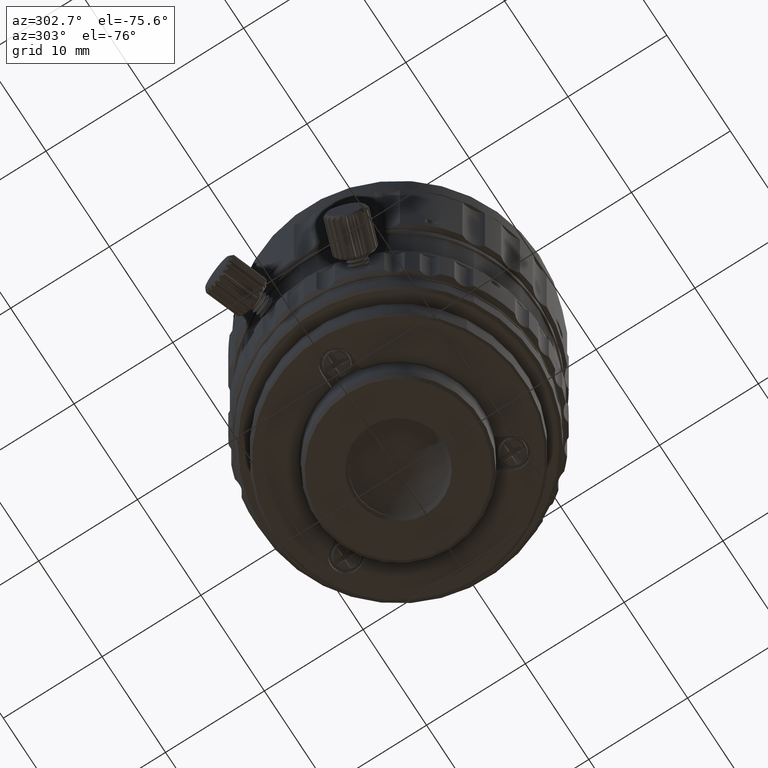
[diagram: clean part render]
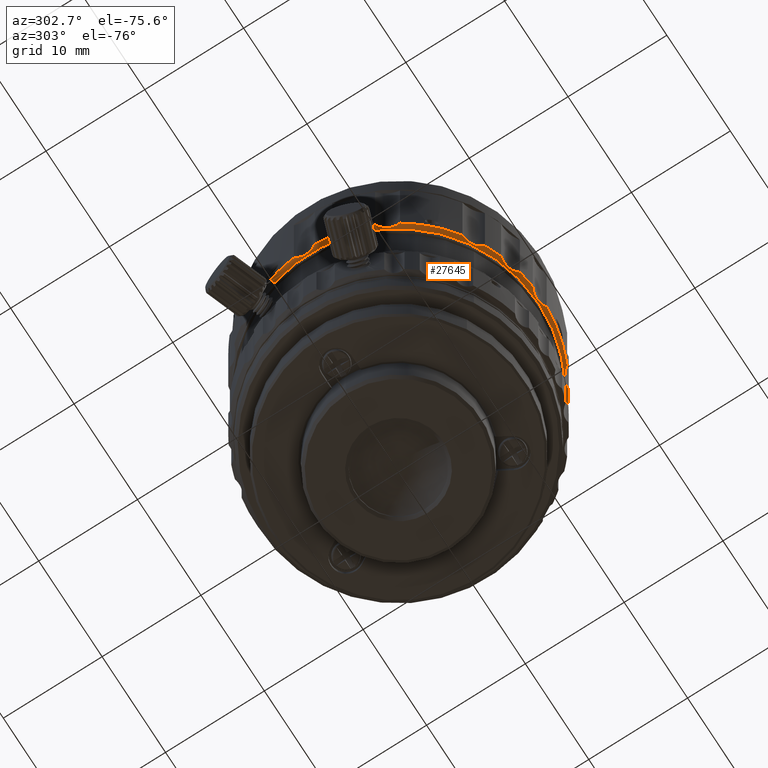
[diagram: same view with one face highlighted and labeled with its STEP entity id]
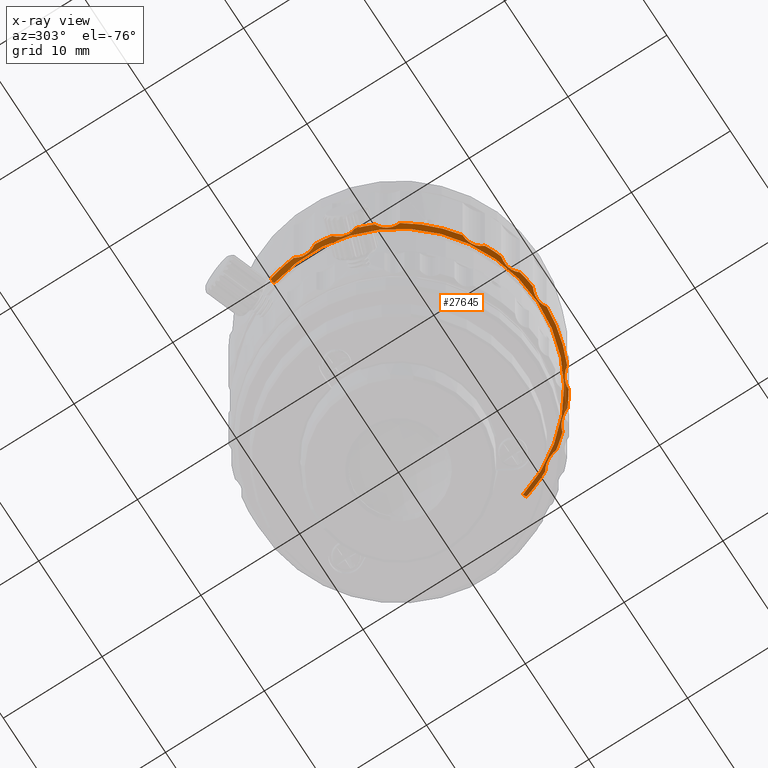
[diagram: x-ray of the same camera — body ghosted, the highlighted face saturated]
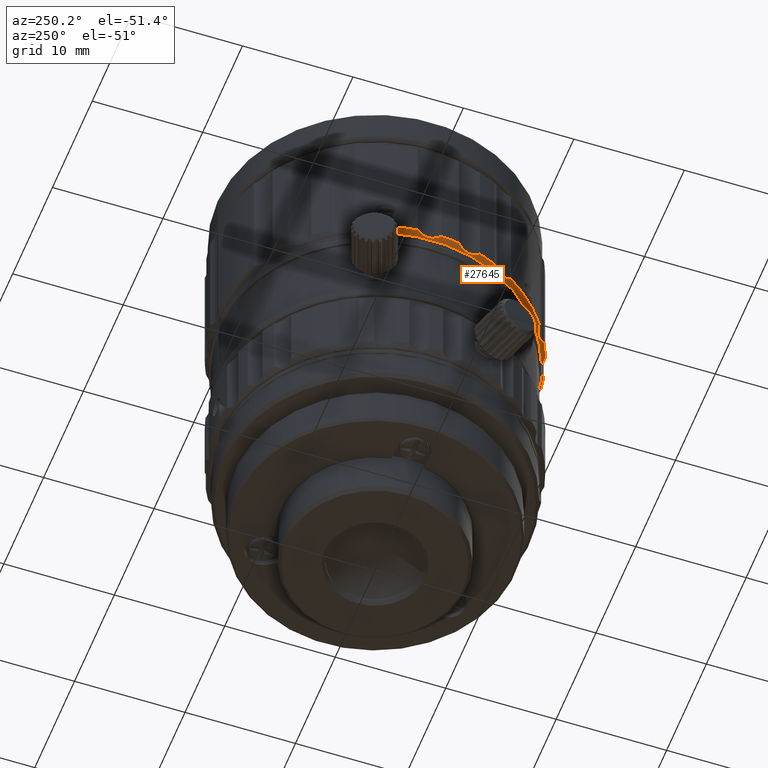
[diagram: same view with one face highlighted and labeled with its STEP entity id]
A machine part, auxiliary view. The second image highlights one B-rep face of the part: STEP entity #27645.
The next image is the same camera in x-ray: the body ghosted, the highlighted face saturated — about 28% of this face is hidden behind the body in this view.
A second angle (auxiliary view) of the same face is appended — the face is thin or edge-on in the first view.
In plain terms, the highlighted conical surface has half-angle 45 deg.
Its self-contained STEP definition (entity closure, byte-faithful):
#700 = CARTESIAN_POINT ( 'NONE',  ( -14.21644271444080054, 0.6001084886705840837, 14.92874179533260026 ) ) ;
#804 = CARTESIAN_POINT ( 'NONE',  ( 13.93829459076052402, -3.996741659247625034, 15.19999998125000040 ) ) ;
#1178 = CARTESIAN_POINT ( 'NONE',  ( -14.24423614477080058, -2.516241994275719929, 15.16466312319590060 ) ) ;
#1294 = CARTESIAN_POINT ( 'NONE',  ( -3.746276467587790204, -13.70267296574570182, 14.90519358754220036 ) ) ;
#1419 = VERTEX_POINT ( 'NONE', #10674 ) ;
#1709 = ORIENTED_EDGE ( 'NONE', *, *, #18002, .F. ) ;
#2018 = DIRECTION ( 'NONE',  ( -0.9612616959425918095, 0.2756373558020978609, 0.000000000000000000 ) ) ;
#2423 = CARTESIAN_POINT ( 'NONE',  ( -5.008754729104790471, -13.60743826234570086, 15.19999998125000040 ) ) ;
#2433 = CARTESIAN_POINT ( 'NONE',  ( -4.084192400950789725, -13.60576681667569865, 14.90518205046690170 ) ) ;
#2513 = VERTEX_POINT ( 'NONE', #18651 ) ;
#2928 = CARTESIAN_POINT ( 'NONE',  ( -1.316221373034790032, -14.44013716337570052, 15.19999998125000040 ) ) ;
#3165 = CARTESIAN_POINT ( 'NONE',  ( 10.44768126967919919, -9.801965028739719088, 15.02558370914869812 ) ) ;
#3214 = CARTESIAN_POINT ( 'NONE',  ( 0.2796835366445090121, -14.26616599309570077, 14.96854781948299973 ) ) ;
#3490 = B_SPLINE_CURVE_WITH_KNOTS ( 'NONE', 3,
 ( #9312, #48570, #4720, #22210, #4449, #700, #39144, #52597, #9036, #22476, #4179, #48299, #52318, #18183, #26777 ),
 .UNSPECIFIED., .F., .F.,
 ( 4, 1, 1, 1, 1, 1, 1, 1, 1, 1, 1, 1, 4 ),
 ( 0.000000000000000000, 0.08333333333333001192, 0.1666666666667000196, 0.2500000000000000000, 0.3333333333333000081, 0.4166666666666999919, 0.5000000000000000000, 0.5833333333333000637, 0.6666666666667000474, 0.7500000000000000000, 0.8333333333333000637, 0.9166666666667000474, 1.000000000000000000 ),
 .UNSPECIFIED. ) ;
#3542 = B_SPLINE_CURVE_WITH_KNOTS ( 'NONE', 3,
 ( #34566, #7922, #38309, #52044, #12511, #21941, #12781, #55777, #47741, #8492, #43461, #17651, #47462, #51483, #8198 ),
 .UNSPECIFIED., .F., .F.,
 ( 4, 1, 1, 1, 1, 1, 1, 1, 1, 1, 1, 1, 4 ),
 ( 0.000000000000000000, 0.08333333333333001192, 0.1666666666667000196, 0.2500000000000000000, 0.3333333333333000081, 0.4166666666666999919, 0.5000000000000000000, 0.5833333333333000637, 0.6666666666667000474, 0.7500000000000000000, 0.8333333333333000637, 0.9166666666667000474, 1.000000000000000000 ),
 .UNSPECIFIED. ) ;
#3723 = CARTESIAN_POINT ( 'NONE',  ( 9.431440214684208456, -10.78327974162569980, 15.02553577717860023 ) ) ;
#4179 = CARTESIAN_POINT ( 'NONE',  ( -14.26616599309079980, -0.2796835366456160155, 14.96854781947820001 ) ) ;
#4199 = CARTESIAN_POINT ( 'NONE',  ( 12.94342189120919784, -6.535887831521720592, 15.19999998124989915 ) ) ;
#4277 = ORIENTED_EDGE ( 'NONE', *, *, #27507, .F. ) ;
#4449 = CARTESIAN_POINT ( 'NONE',  ( -14.24769970420079979, 0.7773438030754840078, 14.96852953515519857 ) ) ;
#4704 = DIRECTION ( 'NONE',  ( 1.000000000000000000, 0.000000000000000000, 0.000000000000000000 ) ) ;
#4720 = CARTESIAN_POINT ( 'NONE',  ( -14.35639452102079971, 1.135466856266279967, 15.10087547233170113 ) ) ;
#4795 = CARTESIAN_POINT ( 'NONE',  ( -12.21502039630079928, -7.375296044304719523, 14.96854781947950030 ) ) ;
#5009 = CARTESIAN_POINT ( 'NONE',  ( 0.000000000000000000, 0.000000000000000000, 15.19999998125000040 ) ) ;
#5753 = CARTESIAN_POINT ( 'NONE',  ( -13.77598121088080063, -3.434962321789719830, 14.89740607222250013 ) ) ;
#6026 = VERTEX_POINT ( 'NONE', #32463 ) ;
#6236 = ORIENTED_EDGE ( 'NONE', *, *, #46639, .F. ) ;
#6386 = CARTESIAN_POINT ( 'NONE',  ( 12.62862039208919995, -6.763912279892720925, 15.02558370915519781 ) ) ;
#6722 = CARTESIAN_POINT ( 'NONE',  ( -3.422201908372789703, -13.85244560074570153, 14.96854781948139923 ) ) ;
#7052 = ORIENTED_EDGE ( 'NONE', *, *, #25080, .F. ) ;
#7138 = EDGE_CURVE ( 'NONE', #9712, #56320, #21315, .T. ) ;
#7190 = VERTEX_POINT ( 'NONE', #53690 ) ;
#7196 = EDGE_CURVE ( 'NONE', #29335, #31066, #25976, .T. ) ;
#7498 = CARTESIAN_POINT ( 'NONE',  ( -6.535887831521789870, -12.94342189120570019, 15.19999998124989915 ) ) ;
#7511 = CARTESIAN_POINT ( 'NONE',  ( 0.1039023093020089994, -14.22877810675570132, 14.92879609105460048 ) ) ;
#7922 = CARTESIAN_POINT ( 'NONE',  ( 6.117182724669210536, -13.10762421778570008, 15.16466312319649923 ) ) ;
#8193 = CARTESIAN_POINT ( 'NONE',  ( -6.890869948791789490, -12.49470393294569881, 14.96854781947909885 ) ) ;
#8198 = CARTESIAN_POINT ( 'NONE',  ( 7.941388253924210439, -12.13195584398570048, 15.19999998125040008 ) ) ;
#8306 = CARTESIAN_POINT ( 'NONE',  ( 9.862755237146211940, -10.21286852978570003, 14.89740607222080016 ) ) ;
#8485 = CARTESIAN_POINT ( 'NONE',  ( 0.000000000000000000, 0.000000000000000000, 15.19999998125000040 ) ) ;
#8492 = CARTESIAN_POINT ( 'NONE',  ( 7.204371092744209726, -12.27053215061569880, 14.92879609105509964 ) ) ;
#8547 = CARTESIAN_POINT ( 'NONE',  ( -12.13364787171079939, -7.874277762081719700, 15.16466047324919941 ) ) ;
#9036 = CARTESIAN_POINT ( 'NONE',  ( -14.20537340483080158, 0.07211246011697400315, 14.90519358753909884 ) ) ;
#9220 = CARTESIAN_POINT ( 'NONE',  ( -13.73301869126079922, -4.335840997771719607, 15.10087495406460079 ) ) ;
#9312 = CARTESIAN_POINT ( 'NONE',  ( -14.44013716338080044, 1.316221373034280218, 15.19999998125000040 ) ) ;
#9316 = DIRECTION ( 'NONE',  ( 1.000000000000000000, 0.000000000000000000, 0.000000000000000000 ) ) ;
#9471 = CARTESIAN_POINT ( 'NONE',  ( 13.74604225191793283, -3.941614188183171663, 14.99999998124999934 ) ) ;
#9712 = VERTEX_POINT ( 'NONE', #41316 ) ;
#9888 = CARTESIAN_POINT ( 'NONE',  ( -3.582316838598790021, -13.77083614632569919, 14.92879609105290051 ) ) ;
#9918 = ORIENTED_EDGE ( 'NONE', *, *, #54650, .F. ) ;
#9929 = ORIENTED_EDGE ( 'NONE', *, *, #20125, .F. ) ;
#10055 = CARTESIAN_POINT ( 'NONE',  ( -13.74000112187079914, -3.606965892342720359, 14.90519358753620160 ) ) ;
#10529 = CARTESIAN_POINT ( 'NONE',  ( 0.000000000000000000, 0.000000000000000000, 15.19999998125000040 ) ) ;
#10674 = CARTESIAN_POINT ( 'NONE',  ( -14.44013716338080044, 1.316221373034280218, 15.19999998125000040 ) ) ;
#10698 = CARTESIAN_POINT ( 'NONE',  ( 12.08509477746920169, -7.466458494992719963, 14.90518205046770106 ) ) ;
#10770 = EDGE_CURVE ( 'NONE', #56473, #31293, #25491, .T. ) ;
#10853 = EDGE_CURVE ( 'NONE', #53858, #56473, #39721, .T. ) ;
#11393 = CIRCLE ( 'NONE', #56236, 14.50000000000000000 ) ;
#11809 = CARTESIAN_POINT ( 'NONE',  ( -1.135466856259790047, -14.35639452102569891, 15.10087547233560024 ) ) ;
#12097 = CARTESIAN_POINT ( 'NONE',  ( 0.000000000000000000, 0.000000000000000000, 15.19999998125000040 ) ) ;
#12269 = ORIENTED_EDGE ( 'NONE', *, *, #23653, .F. ) ;
#12333 = CARTESIAN_POINT ( 'NONE',  ( 9.301247561492209215, -11.07774936173569991, 15.16466312319569987 ) ) ;
#12511 = CARTESIAN_POINT ( 'NONE',  ( 6.450650371167210295, -12.72754179087569959, 14.96852953515970164 ) ) ;
#12775 = CARTESIAN_POINT ( 'NONE',  ( -8.292944193531790020, -11.85144774804569856, 15.16466312319619902 ) ) ;
#12781 = CARTESIAN_POINT ( 'NONE',  ( 6.732769836931209895, -12.50869012169570027, 14.90518205046920031 ) ) ;
#13129 = CARTESIAN_POINT ( 'NONE',  ( -12.50869012169080108, -6.732769836930719620, 14.90518205046460132 ) ) ;
#13301 = B_SPLINE_CURVE_WITH_KNOTS ( 'NONE', 3,
 ( #19055, #15323, #54310, #40836, #24201, #54861, #2433, #15038, #1294, #9888, #6722, #32234, #23351, #36830, #19636 ),
 .UNSPECIFIED., .F., .F.,
 ( 4, 1, 1, 1, 1, 1, 1, 1, 1, 1, 1, 1, 4 ),
 ( 0.000000000000000000, 0.08333333333333001192, 0.1666666666667000196, 0.2500000000000000000, 0.3333333333333000081, 0.4166666666666999919, 0.5000000000000000000, 0.5833333333333000637, 0.6666666666667000474, 0.7500000000000000000, 0.8333333333333000637, 0.9166666666667000474, 1.000000000000000000 ),
 .UNSPECIFIED. ) ;
#13317 = CARTESIAN_POINT ( 'NONE',  ( 0.000000000000000000, 0.000000000000000000, 15.19999998125000040 ) ) ;
#13397 = CARTESIAN_POINT ( 'NONE',  ( -12.27053215061079960, -7.204371092744720428, 14.92879609105090033 ) ) ;
#13510 = EDGE_CURVE ( 'NONE', #31293, #41237, #13301, .T. ) ;
#13592 = DIRECTION ( 'NONE',  ( 0.000000000000000000, 0.000000000000000000, 1.000000000000000000 ) ) ;
#14011 = VERTEX_POINT ( 'NONE', #45527 ) ;
#14039 = LINE ( 'NONE', #9471, #40132 ) ;
#14119 = VERTEX_POINT ( 'NONE', #25180 ) ;
#14339 = B_SPLINE_CURVE_WITH_KNOTS ( 'NONE', 3,
 ( #25493, #12333, #29804, #3723, #37852, #55317, #56173, #8306, #21203, #33530, #29512, #3165, #16916, #34387, #51868 ),
 .UNSPECIFIED., .F., .F.,
 ( 4, 1, 1, 1, 1, 1, 1, 1, 1, 1, 1, 1, 4 ),
 ( 0.000000000000000000, 0.08333333333333001192, 0.1666666666667000196, 0.2500000000000000000, 0.3333333333333000081, 0.4166666666666999919, 0.5000000000000000000, 0.5833333333333000637, 0.6666666666667000474, 0.7500000000000000000, 0.8333333333333000637, 0.9166666666667000474, 1.000000000000000000 ),
 .UNSPECIFIED. ) ;
#14489 = EDGE_CURVE ( 'NONE', #7190, #1419, #20191, .T. ) ;
#14705 = CARTESIAN_POINT ( 'NONE',  ( 12.88614851427920094, -6.570908416431720411, 15.16466047324880151 ) ) ;
#15038 = CARTESIAN_POINT ( 'NONE',  ( -3.913225973729789864, -13.64783085157569964, 14.89740607222870139 ) ) ;
#15244 = CARTESIAN_POINT ( 'NONE',  ( -0.2475674834052909723, -14.19560970215569995, 14.89740607223050084 ) ) ;
#15323 = CARTESIAN_POINT ( 'NONE',  ( -4.942988583273789871, -13.59399135601569952, 15.16466312319619902 ) ) ;
#15377 = LINE ( 'NONE', #37753, #49578 ) ;
#15542 = DIRECTION ( 'NONE',  ( 1.000000000000000000, 0.000000000000000000, 0.000000000000000000 ) ) ;
#15686 = DIRECTION ( 'NONE',  ( 0.000000000000000000, 0.000000000000000000, 1.000000000000000000 ) ) ;
#15970 = CIRCLE ( 'NONE', #19155, 14.50000000000000000 ) ;
#16391 = CARTESIAN_POINT ( 'NONE',  ( 0.7525006425657090325, -14.44518617851570141, 15.16466047324889921 ) ) ;
#16548 = AXIS2_PLACEMENT_3D ( 'NONE', #45276, #50739, #2018 ) ;
#16661 = AXIS2_PLACEMENT_3D ( 'NONE', #12097, #29565, #47054 ) ;
#16916 = CARTESIAN_POINT ( 'NONE',  ( 10.62145779646920118, -9.725222558394721162, 15.10087495406209968 ) ) ;
#17146 = CARTESIAN_POINT ( 'NONE',  ( -12.85688474484079968, -6.319153516671719650, 15.02553577718230038 ) ) ;
#17424 = CARTESIAN_POINT ( 'NONE',  ( -12.41754236597080130, -6.883405121297720086, 14.89740607222650048 ) ) ;
#17645 = CARTESIAN_POINT ( 'NONE',  ( -7.974812044228788643, -11.90098984827569950, 15.02553577718270184 ) ) ;
#17651 = CARTESIAN_POINT ( 'NONE',  ( 7.554749934355210250, -12.17203005940569938, 15.02558370915659935 ) ) ;
#18002 = EDGE_CURVE ( 'NONE', #31066, #35762, #37399, .T. ) ;
#18183 = CARTESIAN_POINT ( 'NONE',  ( -14.44518617851080045, -0.7525006425673159693, 15.16466047324889921 ) ) ;
#18292 = CARTESIAN_POINT ( 'NONE',  ( 0.000000000000000000, 0.000000000000000000, 14.99999998124999934 ) ) ;
#18468 = DIRECTION ( 'NONE',  ( 0.000000000000000000, 0.000000000000000000, 1.000000000000000000 ) ) ;
#18531 = ORIENTED_EDGE ( 'NONE', *, *, #7138, .F. ) ;
#18651 = CARTESIAN_POINT ( 'NONE',  ( -13.55378991279054901, 3.886486716809581576, 14.79999998125000005 ) ) ;
#19013 = CARTESIAN_POINT ( 'NONE',  ( 11.84741493109920007, -8.359949727741721404, 15.19999998125000040 ) ) ;
#19055 = CARTESIAN_POINT ( 'NONE',  ( -5.008754729104790471, -13.60743826234570086, 15.19999998125000040 ) ) ;
#19155 = AXIS2_PLACEMENT_3D ( 'NONE', #28275, #28567, #45759 ) ;
#19636 = CARTESIAN_POINT ( 'NONE',  ( -2.963178759953789765, -14.19399773272570009, 15.19999998125000040 ) ) ;
#20124 = CARTESIAN_POINT ( 'NONE',  ( -1.316221373034790032, -14.44013716337570052, 15.19999998125000040 ) ) ;
#20125 = EDGE_CURVE ( 'NONE', #2513, #7190, #15377, .T. ) ;
#20191 = CIRCLE ( 'NONE', #46703, 14.50000000000000000 ) ;
#20417 = CARTESIAN_POINT ( 'NONE',  ( -0.7773438030712910285, -14.24769970420569898, 14.96852953515910123 ) ) ;
#20694 = CARTESIAN_POINT ( 'NONE',  ( 0.6337340143749089494, -14.38727565356570004, 15.10087495407200109 ) ) ;
#21146 = CARTESIAN_POINT ( 'NONE',  ( -12.13195584399080040, -7.941388253921720874, 15.19999998125040008 ) ) ;
#21195 = CARTESIAN_POINT ( 'NONE',  ( -12.13195584399080040, -7.941388253921720874, 15.19999998125040008 ) ) ;
#21203 = CARTESIAN_POINT ( 'NONE',  ( 9.993724654284211084, -10.09570707339569928, 14.90519358753440038 ) ) ;
#21315 = CIRCLE ( 'NONE', #24027, 14.50000000000000000 ) ;
#21446 = CARTESIAN_POINT ( 'NONE',  ( -13.10762421778080089, -6.117182724668720262, 15.16466312319649923 ) ) ;
#21670 = CARTESIAN_POINT ( 'NONE',  ( -7.466458494992790129, -12.08509477746570049, 14.90518205046480027 ) ) ;
#21941 = CARTESIAN_POINT ( 'NONE',  ( 6.588512161008210022, -12.61185478648570246, 14.92874179533739998 ) ) ;
#22048 = FACE_OUTER_BOUND ( 'NONE', #52872, .T. ) ;
#22199 = EDGE_CURVE ( 'NONE', #49622, #14011, #52465, .T. ) ;
#22210 = CARTESIAN_POINT ( 'NONE',  ( -14.29396556090079962, 0.9558948965719840096, 15.02553577718230038 ) ) ;
#22476 = CARTESIAN_POINT ( 'NONE',  ( -14.22877810675080035, -0.1039023093020160077, 14.92879609104969951 ) ) ;
#22942 = CARTESIAN_POINT ( 'NONE',  ( -13.71259135674080021, -4.146974875819720019, 15.02558370915030039 ) ) ;
#23025 = CARTESIAN_POINT ( 'NONE',  ( 11.85144774804919976, -8.292944193529720565, 15.16466312319619902 ) ) ;
#23234 = CARTESIAN_POINT ( 'NONE',  ( 13.55378991273027367, -3.886486717019769888, 14.79999998125000005 ) ) ;
#23351 = CARTESIAN_POINT ( 'NONE',  ( -3.111560894797790411, -14.06106355616570092, 15.10087495407050007 ) ) ;
#23653 = EDGE_CURVE ( 'NONE', #1419, #40421, #3490, .T. ) ;
#23873 = CARTESIAN_POINT ( 'NONE',  ( 12.77661321442919906, -6.644808071090720247, 15.10087495407100100 ) ) ;
#24027 = AXIS2_PLACEMENT_3D ( 'NONE', #13317, #13592, #4704 ) ;
#24130 = CARTESIAN_POINT ( 'NONE',  ( -0.4235953442324910112, -14.19922833192569911, 14.90518205046869937 ) ) ;
#24201 = CARTESIAN_POINT ( 'NONE',  ( -4.438432487642789859, -13.56102972867570067, 14.96852953515760021 ) ) ;
#24936 = ORIENTED_EDGE ( 'NONE', *, *, #34848, .F. ) ;
#25061 = EDGE_CURVE ( 'NONE', #6026, #29335, #33330, .T. ) ;
#25080 = EDGE_CURVE ( 'NONE', #40421, #33010, #15970, .T. ) ;
#25180 = CARTESIAN_POINT ( 'NONE',  ( 0.8114660472206089992, -14.47727608544570010, 15.19999998125000040 ) ) ;
#25373 = ORIENTED_EDGE ( 'NONE', *, *, #27445, .F. ) ;
#25458 = CARTESIAN_POINT ( 'NONE',  ( 6.080187435636210225, -13.16363630413570007, 15.19999998125000040 ) ) ;
#25491 = CIRCLE ( 'NONE', #49290, 14.50000000000000000 ) ;
#25493 = CARTESIAN_POINT ( 'NONE',  ( 9.280009851069211280, -11.14142796790570067, 15.19999998125000040 ) ) ;
#25530 = CARTESIAN_POINT ( 'NONE',  ( 0.000000000000000000, 0.000000000000000000, 15.19999998125000040 ) ) ;
#25976 = B_SPLINE_CURVE_WITH_KNOTS ( 'NONE', 3,
 ( #19013, #23025, #44525, #49683, #45643, #53965, #10698, #27601, #54545, #54267, #36787, #6386, #23873, #14705, #32190 ),
 .UNSPECIFIED., .F., .F.,
 ( 4, 1, 1, 1, 1, 1, 1, 1, 1, 1, 1, 1, 4 ),
 ( 0.000000000000000000, 0.08333333333333001192, 0.1666666666667000196, 0.2500000000000000000, 0.3333333333333000081, 0.4166666666666999919, 0.5000000000000000000, 0.5833333333333000637, 0.6666666666667000474, 0.7500000000000000000, 0.8333333333333000637, 0.9166666666667000474, 1.000000000000000000 ),
 .UNSPECIFIED. ) ;
#26013 = VERTEX_POINT ( 'NONE', #20124 ) ;
#26017 = CARTESIAN_POINT ( 'NONE',  ( -12.72754179087080040, -6.450650371165719932, 14.96852953515529983 ) ) ;
#26512 = CARTESIAN_POINT ( 'NONE',  ( -6.570908416431790577, -12.88614851427569974, 15.16466047324880151 ) ) ;
#26569 = CARTESIAN_POINT ( 'NONE',  ( -13.16363630413079910, -6.080187435637720128, 15.19999998125019935 ) ) ;
#26616 = ORIENTED_EDGE ( 'NONE', *, *, #10853, .F. ) ;
#26777 = CARTESIAN_POINT ( 'NONE',  ( -14.47727608544080091, -0.8114660472223159671, 15.19999998125000040 ) ) ;
#26935 = DIRECTION ( 'NONE',  ( 0.6797146630828566627, -0.1949050432716163961, 0.7071067818211390632 ) ) ;
#26955 = ORIENTED_EDGE ( 'NONE', *, *, #32106, .F. ) ;
#27445 = EDGE_CURVE ( 'NONE', #36725, #2513, #54992, .T. ) ;
#27507 = EDGE_CURVE ( 'NONE', #14011, #6026, #14339, .T. ) ;
#27601 = CARTESIAN_POINT ( 'NONE',  ( 12.16997488256919979, -7.312204580857720515, 14.89740607222940127 ) ) ;
#27645 = ADVANCED_FACE ( 'NONE', ( #22048 ), #53146, .T. ) ;
#27993 = DIRECTION ( 'NONE',  ( 1.000000000000000000, 0.000000000000000000, 0.000000000000000000 ) ) ;
#28134 = CARTESIAN_POINT ( 'NONE',  ( 0.000000000000000000, 0.000000000000000000, 15.19999998125000040 ) ) ;
#28275 = CARTESIAN_POINT ( 'NONE',  ( 0.000000000000000000, 0.000000000000000000, 15.19999998125000040 ) ) ;
#28567 = DIRECTION ( 'NONE',  ( 0.000000000000000000, 0.000000000000000000, 1.000000000000000000 ) ) ;
#28740 = CARTESIAN_POINT ( 'NONE',  ( -2.963178759953789765, -14.19399773272570009, 15.19999998125000040 ) ) ;
#29273 = CARTESIAN_POINT ( 'NONE',  ( -0.9558948965683909949, -14.29396556090570058, 15.02553577718530065 ) ) ;
#29335 = VERTEX_POINT ( 'NONE', #53134 ) ;
#29512 = CARTESIAN_POINT ( 'NONE',  ( 10.28546884059920075, -9.889936589897718733, 14.96854781947399893 ) ) ;
#29565 = DIRECTION ( 'NONE',  ( 0.000000000000000000, 0.000000000000000000, 1.000000000000000000 ) ) ;
#29699 = CARTESIAN_POINT ( 'NONE',  ( -7.627930553435789740, -12.01174629781569969, 14.92874179533330015 ) ) ;
#29804 = CARTESIAN_POINT ( 'NONE',  ( 9.348607605322209579, -10.95440023308569977, 15.10087547232710037 ) ) ;
#30990 = CARTESIAN_POINT ( 'NONE',  ( -13.96341249032080079, -2.936719577054720087, 14.96852953515159967 ) ) ;
#31066 = VERTEX_POINT ( 'NONE', #4199 ) ;
#31275 = CARTESIAN_POINT ( 'NONE',  ( -8.359949727743790859, -11.84741493109569888, 15.19999998125000040 ) ) ;
#31293 = VERTEX_POINT ( 'NONE', #2423 ) ;
#31298 = CARTESIAN_POINT ( 'NONE',  ( -13.16363630413079910, -6.080187435637720128, 15.19999998125019935 ) ) ;
#31474 = DIRECTION ( 'NONE',  ( -1.150809682885772011E-17, 3.299893664540600058E-18, 1.000000000000000000 ) ) ;
#31550 = CARTESIAN_POINT ( 'NONE',  ( -14.05431429970079904, -2.776226949384720033, 15.02553577717920064 ) ) ;
#31652 = ORIENTED_EDGE ( 'NONE', *, *, #49244, .F. ) ;
#31825 = CARTESIAN_POINT ( 'NONE',  ( -13.88734868183079918, -3.099825840325720172, 14.92874179532910084 ) ) ;
#32106 = EDGE_CURVE ( 'NONE', #14119, #34294, #40819, .T. ) ;
#32190 = CARTESIAN_POINT ( 'NONE',  ( 12.94342189120919784, -6.535887831521720592, 15.19999998124989915 ) ) ;
#32234 = CARTESIAN_POINT ( 'NONE',  ( -3.264910087057789845, -13.94893990456569988, 15.02558370915479991 ) ) ;
#32452 = CARTESIAN_POINT ( 'NONE',  ( 0.000000000000000000, 0.000000000000000000, 15.19999998125000040 ) ) ;
#32463 = CARTESIAN_POINT ( 'NONE',  ( 10.81077323781920008, -9.663186948434720591, 15.19999998124980145 ) ) ;
#33010 = VERTEX_POINT ( 'NONE', #39041 ) ;
#33303 = CARTESIAN_POINT ( 'NONE',  ( -1.256176469738790047, -14.41012691819569902, 15.16466312319619902 ) ) ;
#33330 = CIRCLE ( 'NONE', #55315, 14.50000000000000000 ) ;
#33530 = CARTESIAN_POINT ( 'NONE',  ( 10.13473551476920065, -9.987795459789719388, 14.92879609104529948 ) ) ;
#33814 = EDGE_CURVE ( 'NONE', #33010, #9712, #52869, .T. ) ;
#33868 = CARTESIAN_POINT ( 'NONE',  ( 0.8114660472206089992, -14.47727608544570010, 15.19999998125000040 ) ) ;
#34004 = ORIENTED_EDGE ( 'NONE', *, *, #33814, .F. ) ;
#34130 = AXIS2_PLACEMENT_3D ( 'NONE', #28134, #54525, #41927 ) ;
#34294 = VERTEX_POINT ( 'NONE', #25458 ) ;
#34387 = CARTESIAN_POINT ( 'NONE',  ( 10.74638740953919935, -9.682190795123718274, 15.16466047324840005 ) ) ;
#34566 = CARTESIAN_POINT ( 'NONE',  ( 6.080187435636210225, -13.16363630413570007, 15.19999998125000040 ) ) ;
#34848 = EDGE_CURVE ( 'NONE', #34294, #49622, #3542, .T. ) ;
#35124 = CARTESIAN_POINT ( 'NONE',  ( -7.024407014008789751, -12.37443445990569835, 14.92879609105060013 ) ) ;
#35273 = DIRECTION ( 'NONE',  ( 0.000000000000000000, 0.000000000000000000, 1.000000000000000000 ) ) ;
#35452 = CARTESIAN_POINT ( 'NONE',  ( -12.61185478648080149, -6.588512161007719747, 14.92874179533299994 ) ) ;
#35762 = VERTEX_POINT ( 'NONE', #804 ) ;
#36095 = ORIENTED_EDGE ( 'NONE', *, *, #49231, .F. ) ;
#36428 = CARTESIAN_POINT ( 'NONE',  ( -13.82503590168079910, -3.265869035170720469, 14.90518205046060096 ) ) ;
#36725 = VERTEX_POINT ( 'NONE', #23234 ) ;
#36787 = CARTESIAN_POINT ( 'NONE',  ( 12.49470393294920001, -6.890869948792719413, 14.96854781948190016 ) ) ;
#36830 = CARTESIAN_POINT ( 'NONE',  ( -3.011829488098789920, -14.14773989313570013, 15.16466047324880151 ) ) ;
#37149 = AXIS2_PLACEMENT_3D ( 'NONE', #32452, #41646, #15542 ) ;
#37399 = CIRCLE ( 'NONE', #50187, 14.50000000000000000 ) ;
#37753 = CARTESIAN_POINT ( 'NONE',  ( -13.74604225191793283, 3.941614188183173439, 14.99999998124999934 ) ) ;
#37852 = CARTESIAN_POINT ( 'NONE',  ( 9.524980002677208901, -10.62431015161570080, 14.96852953515069906 ) ) ;
#37929 = CARTESIAN_POINT ( 'NONE',  ( 0.000000000000000000, 0.000000000000000000, 15.19999998125000040 ) ) ;
#38309 = CARTESIAN_POINT ( 'NONE',  ( 6.194854117836210428, -13.00073579009569968, 15.10087547233650085 ) ) ;
#38587 = CARTESIAN_POINT ( 'NONE',  ( -8.359949727743790859, -11.84741493109569888, 15.19999998125000040 ) ) ;
#39041 = CARTESIAN_POINT ( 'NONE',  ( -14.28876458017079898, -2.466010294445719619, 15.19999998124980145 ) ) ;
#39144 = CARTESIAN_POINT ( 'NONE',  ( -14.19922833192080169, 0.4235953442348839859, 14.90518205046389966 ) ) ;
#39152 = CARTESIAN_POINT ( 'NONE',  ( -7.312204580857790681, -12.16997488256569859, 14.89740607222650048 ) ) ;
#39721 = B_SPLINE_CURVE_WITH_KNOTS ( 'NONE', 3,
 ( #38587, #12775, #56065, #17645, #55773, #29699, #21670, #39152, #47178, #35124, #8193, #48307, #43168, #26512, #56627 ),
 .UNSPECIFIED., .F., .F.,
 ( 4, 1, 1, 1, 1, 1, 1, 1, 1, 1, 1, 1, 4 ),
 ( 0.000000000000000000, 0.08333333333333001192, 0.1666666666667000196, 0.2500000000000000000, 0.3333333333333000081, 0.4166666666666999919, 0.5000000000000000000, 0.5833333333333000637, 0.6666666666667000474, 0.7500000000000000000, 0.8333333333333000637, 0.9166666666667000474, 1.000000000000000000 ),
 .UNSPECIFIED. ) ;
#39742 = ORIENTED_EDGE ( 'NONE', *, *, #22199, .F. ) ;
#39811 = ORIENTED_EDGE ( 'NONE', *, *, #56712, .T. ) ;
#39884 = CARTESIAN_POINT ( 'NONE',  ( -14.16109268773080032, -2.618931559685720334, 15.10087547232710037 ) ) ;
#40082 = DIRECTION ( 'NONE',  ( 0.9612616959383171178, -0.2756373558170050475, 0.000000000000000000 ) ) ;
#40132 = VECTOR ( 'NONE', #26935, 1000.000000000000000 ) ;
#40421 = VERTEX_POINT ( 'NONE', #53825 ) ;
#40819 = CIRCLE ( 'NONE', #37149, 14.50000000000000000 ) ;
#40836 = CARTESIAN_POINT ( 'NONE',  ( -4.622874085014789358, -13.55950669101570050, 15.02553577718410160 ) ) ;
#41237 = VERTEX_POINT ( 'NONE', #28740 ) ;
#41316 = CARTESIAN_POINT ( 'NONE',  ( -13.77395199777079959, -4.530810784292719440, 15.19999998124989915 ) ) ;
#41636 = CARTESIAN_POINT ( 'NONE',  ( -0.07211246011653101029, -14.20537340483570077, 14.90519358754410106 ) ) ;
#41646 = DIRECTION ( 'NONE',  ( 0.000000000000000000, 0.000000000000000000, 1.000000000000000000 ) ) ;
#41761 = DIRECTION ( 'NONE',  ( -0.6797146630828566627, 0.1949050432716164516, 0.7071067818211390632 ) ) ;
#41927 = DIRECTION ( 'NONE',  ( 1.000000000000000000, 0.000000000000000000, 0.000000000000000000 ) ) ;
#42283 = CIRCLE ( 'NONE', #16661, 14.50000000000000000 ) ;
#43168 = CARTESIAN_POINT ( 'NONE',  ( -6.644808071089789436, -12.77661321442569786, 15.10087495406730085 ) ) ;
#43450 = ORIENTED_EDGE ( 'NONE', *, *, #7196, .F. ) ;
#43461 = CARTESIAN_POINT ( 'NONE',  ( 7.375296044303209619, -12.21502039630570025, 14.96854781948360014 ) ) ;
#43504 = B_SPLINE_CURVE_WITH_KNOTS ( 'NONE', 3,
 ( #26569, #21446, #52100, #17146, #26017, #35452, #13129, #17424, #44064, #13397, #4795, #47513, #47797, #8547, #21146 ),
 .UNSPECIFIED., .F., .F.,
 ( 4, 1, 1, 1, 1, 1, 1, 1, 1, 1, 1, 1, 4 ),
 ( 0.000000000000000000, 0.08333333333333001192, 0.1666666666667000196, 0.2500000000000000000, 0.3333333333333000081, 0.4166666666666999919, 0.5000000000000000000, 0.5833333333333000637, 0.6666666666667000474, 0.7500000000000000000, 0.8333333333333000637, 0.9166666666667000474, 1.000000000000000000 ),
 .UNSPECIFIED. ) ;
#44064 = CARTESIAN_POINT ( 'NONE',  ( -12.33827046889079959, -7.040235480027720705, 14.90519358754010071 ) ) ;
#44193 = CARTESIAN_POINT ( 'NONE',  ( -13.75821689763079902, -4.465549098009719664, 15.16466047324840005 ) ) ;
#44525 = CARTESIAN_POINT ( 'NONE',  ( 11.86526893382920100, -8.161540403192720561, 15.10087547233580096 ) ) ;
#45276 = CARTESIAN_POINT ( 'NONE',  ( 0.000000000000000000, 0.000000000000000000, 14.79999998125000005 ) ) ;
#45527 = CARTESIAN_POINT ( 'NONE',  ( 9.280009851069211280, -11.14142796790570067, 15.19999998125000040 ) ) ;
#45643 = CARTESIAN_POINT ( 'NONE',  ( 11.95019798779920173, -7.797049333037720409, 14.96852953515850082 ) ) ;
#45759 = DIRECTION ( 'NONE',  ( 1.000000000000000000, 0.000000000000000000, 0.000000000000000000 ) ) ;
#46053 = ORIENTED_EDGE ( 'NONE', *, *, #14489, .F. ) ;
#46639 = EDGE_CURVE ( 'NONE', #41237, #26013, #11393, .T. ) ;
#46703 = AXIS2_PLACEMENT_3D ( 'NONE', #25530, #35273, #48170 ) ;
#46767 = CARTESIAN_POINT ( 'NONE',  ( -0.6001084886671910201, -14.21644271444570151, 14.92874179533689905 ) ) ;
#47054 = DIRECTION ( 'NONE',  ( 1.000000000000000000, 0.000000000000000000, 0.000000000000000000 ) ) ;
#47082 = DIRECTION ( 'NONE',  ( 1.000000000000000000, 0.000000000000000000, 0.000000000000000000 ) ) ;
#47178 = CARTESIAN_POINT ( 'NONE',  ( -7.165137924807789993, -12.26615800877569917, 14.90519358753989998 ) ) ;
#47456 = DIRECTION ( 'NONE',  ( 1.000000000000000000, 0.000000000000000000, 0.000000000000000000 ) ) ;
#47462 = CARTESIAN_POINT ( 'NONE',  ( 7.742467582474209742, -12.14287920005570065, 15.10087495407280045 ) ) ;
#47513 = CARTESIAN_POINT ( 'NONE',  ( -12.17203005940079841, -7.554749934355720065, 15.02558370915340014 ) ) ;
#47741 = CARTESIAN_POINT ( 'NONE',  ( 7.040235480028210091, -12.33827046889570056, 14.90519358754460022 ) ) ;
#47797 = CARTESIAN_POINT ( 'NONE',  ( -12.14287920005079968, -7.742467582477719823, 15.10087495406780000 ) ) ;
#48026 = DIRECTION ( 'NONE',  ( 0.000000000000000000, 0.000000000000000000, 1.000000000000000000 ) ) ;
#48170 = DIRECTION ( 'NONE',  ( 1.000000000000000000, 0.000000000000000000, 0.000000000000000000 ) ) ;
#48299 = CARTESIAN_POINT ( 'NONE',  ( -14.31866221424079910, -0.4565903326899160009, 15.02558370915200037 ) ) ;
#48307 = CARTESIAN_POINT ( 'NONE',  ( -6.763912279891790114, -12.62862039208569875, 15.02558370915279973 ) ) ;
#48481 = CARTESIAN_POINT ( 'NONE',  ( -14.28876458017079898, -2.466010294445719619, 15.19999998124980145 ) ) ;
#48570 = CARTESIAN_POINT ( 'NONE',  ( -14.41012691820079894, 1.256176469738280010, 15.16466312319600007 ) ) ;
#49231 = EDGE_CURVE ( 'NONE', #26013, #14119, #50870, .T. ) ;
#49244 = EDGE_CURVE ( 'NONE', #50300, #53858, #42283, .T. ) ;
#49290 = AXIS2_PLACEMENT_3D ( 'NONE', #8485, #48026, #47456 ) ;
#49578 = VECTOR ( 'NONE', #41761, 1000.000000000000000 ) ;
#49622 = VERTEX_POINT ( 'NONE', #54089 ) ;
#49683 = CARTESIAN_POINT ( 'NONE',  ( 11.90098984827920070, -7.974812044227720165, 15.02553577718500222 ) ) ;
#49685 = ORIENTED_EDGE ( 'NONE', *, *, #13510, .F. ) ;
#50187 = AXIS2_PLACEMENT_3D ( 'NONE', #37929, #56253, #47082 ) ;
#50300 = VERTEX_POINT ( 'NONE', #21195 ) ;
#50739 = DIRECTION ( 'NONE',  ( 0.000000000000000000, 0.000000000000000000, -1.000000000000000000 ) ) ;
#50792 = CARTESIAN_POINT ( 'NONE',  ( 0.4565903326887090219, -14.31866221424569829, 15.02558370915600072 ) ) ;
#50870 = B_SPLINE_CURVE_WITH_KNOTS ( 'NONE', 3,
 ( #2928, #33303, #11809, #29273, #20417, #46767, #24130, #15244, #41636, #7511, #3214, #50792, #20694, #16391, #33868 ),
 .UNSPECIFIED., .F., .F.,
 ( 4, 1, 1, 1, 1, 1, 1, 1, 1, 1, 1, 1, 4 ),
 ( 0.000000000000000000, 0.08333333333333001192, 0.1666666666667000196, 0.2500000000000000000, 0.3333333333333000081, 0.4166666666666999919, 0.5000000000000000000, 0.5833333333333000637, 0.6666666666667000474, 0.7500000000000000000, 0.8333333333333000637, 0.9166666666667000474, 1.000000000000000000 ),
 .UNSPECIFIED. ) ;
#51174 = ORIENTED_EDGE ( 'NONE', *, *, #25061, .F. ) ;
#51483 = CARTESIAN_POINT ( 'NONE',  ( 7.874277762084209265, -12.13364787170569947, 15.16466047324930067 ) ) ;
#51868 = CARTESIAN_POINT ( 'NONE',  ( 10.81077323781920008, -9.663186948434720591, 15.19999998124980145 ) ) ;
#52044 = CARTESIAN_POINT ( 'NONE',  ( 6.319153516673209126, -12.85688474484569888, 15.02553577718590105 ) ) ;
#52100 = CARTESIAN_POINT ( 'NONE',  ( -13.00073579009080049, -6.194854117833719975, 15.10087547233090000 ) ) ;
#52318 = CARTESIAN_POINT ( 'NONE',  ( -14.38727565356079907, -0.6337340143765159972, 15.10087495406600056 ) ) ;
#52465 = CIRCLE ( 'NONE', #34130, 14.50000000000000000 ) ;
#52597 = CARTESIAN_POINT ( 'NONE',  ( -14.19560970215080076, 0.2475674834070839825, 14.89740607222559987 ) ) ;
#52785 = CARTESIAN_POINT ( 'NONE',  ( -13.70767074897080029, -3.962509010843720425, 14.96854781947589963 ) ) ;
#52869 = B_SPLINE_CURVE_WITH_KNOTS ( 'NONE', 3,
 ( #48481, #1178, #39884, #31550, #30990, #31825, #36428, #5753, #10055, #53335, #52785, #22942, #9220, #44193, #53894 ),
 .UNSPECIFIED., .F., .F.,
 ( 4, 1, 1, 1, 1, 1, 1, 1, 1, 1, 1, 1, 4 ),
 ( 0.000000000000000000, 0.08333333333333001192, 0.1666666666667000196, 0.2500000000000000000, 0.3333333333333000081, 0.4166666666666999919, 0.5000000000000000000, 0.5833333333333000637, 0.6666666666667000474, 0.7500000000000000000, 0.8333333333333000637, 0.9166666666667000474, 1.000000000000000000 ),
 .UNSPECIFIED. ) ;
#52872 = EDGE_LOOP ( 'NONE', ( #9929, #25373, #39811, #1709, #43450, #51174, #4277, #39742, #24936, #26955, #36095, #6236, #49685, #54894, #26616, #31652, #9918, #18531, #34004, #7052, #12269, #46053 ) ) ;
#53134 = CARTESIAN_POINT ( 'NONE',  ( 11.84741493109920007, -8.359949727741721404, 15.19999998125000040 ) ) ;
#53146 = CONICAL_SURFACE ( 'NONE', #54037, 14.29999999999999716, 0.7853981625000003852 ) ;
#53335 = CARTESIAN_POINT ( 'NONE',  ( -13.71705235336079909, -3.783040686533720276, 14.92879609104709893 ) ) ;
#53690 = CARTESIAN_POINT ( 'NONE',  ( -13.93829459076052402, 3.996741659247626810, 15.19999998125000040 ) ) ;
#53825 = CARTESIAN_POINT ( 'NONE',  ( -14.47727608544080091, -0.8114660472223159671, 15.19999998125000040 ) ) ;
#53858 = VERTEX_POINT ( 'NONE', #31275 ) ;
#53894 = CARTESIAN_POINT ( 'NONE',  ( -13.77395199777079959, -4.530810784292719440, 15.19999998124989915 ) ) ;
#53965 = CARTESIAN_POINT ( 'NONE',  ( 12.01174629781920089, -7.627930553434720373, 14.92874179533600021 ) ) ;
#54037 = AXIS2_PLACEMENT_3D ( 'NONE', #18292, #31474, #40082 ) ;
#54089 = CARTESIAN_POINT ( 'NONE',  ( 7.941388253924210439, -12.13195584398570048, 15.19999998125040008 ) ) ;
#54267 = CARTESIAN_POINT ( 'NONE',  ( 12.37443445990919955, -7.024407014008719585, 14.92879609105349914 ) ) ;
#54310 = CARTESIAN_POINT ( 'NONE',  ( -4.812485082405789427, -13.57333179277570068, 15.10087547233429994 ) ) ;
#54525 = DIRECTION ( 'NONE',  ( 0.000000000000000000, 0.000000000000000000, 1.000000000000000000 ) ) ;
#54545 = CARTESIAN_POINT ( 'NONE',  ( 12.26615800877919860, -7.165137924807719827, 14.90519358754290025 ) ) ;
#54650 = EDGE_CURVE ( 'NONE', #56320, #50300, #43504, .T. ) ;
#54861 = CARTESIAN_POINT ( 'NONE',  ( -4.259146415886790216, -13.57670966984569993, 14.92874179533519907 ) ) ;
#54894 = ORIENTED_EDGE ( 'NONE', *, *, #10770, .F. ) ;
#54992 = CIRCLE ( 'NONE', #16548, 14.10000000000000497 ) ;
#55315 = AXIS2_PLACEMENT_3D ( 'NONE', #10529, #15686, #27993 ) ;
#55317 = CARTESIAN_POINT ( 'NONE',  ( 9.628202265939208360, -10.47688382951569963, 14.92874179532799950 ) ) ;
#55773 = CARTESIAN_POINT ( 'NONE',  ( -7.797049333037789687, -11.95019798779570053, 14.96852953515579898 ) ) ;
#55777 = CARTESIAN_POINT ( 'NONE',  ( 6.883405121297209384, -12.41754236597570049, 14.89740607223100000 ) ) ;
#56065 = CARTESIAN_POINT ( 'NONE',  ( -8.161540403193791704, -11.86526893382570158, 15.10087547233229976 ) ) ;
#56173 = CARTESIAN_POINT ( 'NONE',  ( 9.740843500725210546, -10.33989778150569983, 14.90518205045920119 ) ) ;
#56236 = AXIS2_PLACEMENT_3D ( 'NONE', #5009, #18468, #9316 ) ;
#56253 = DIRECTION ( 'NONE',  ( 0.000000000000000000, 0.000000000000000000, 1.000000000000000000 ) ) ;
#56320 = VERTEX_POINT ( 'NONE', #31298 ) ;
#56473 = VERTEX_POINT ( 'NONE', #7498 ) ;
#56627 = CARTESIAN_POINT ( 'NONE',  ( -6.535887831521789870, -12.94342189120570019, 15.19999998124989915 ) ) ;
#56712 = EDGE_CURVE ( 'NONE', #36725, #35762, #14039, .T. ) ;